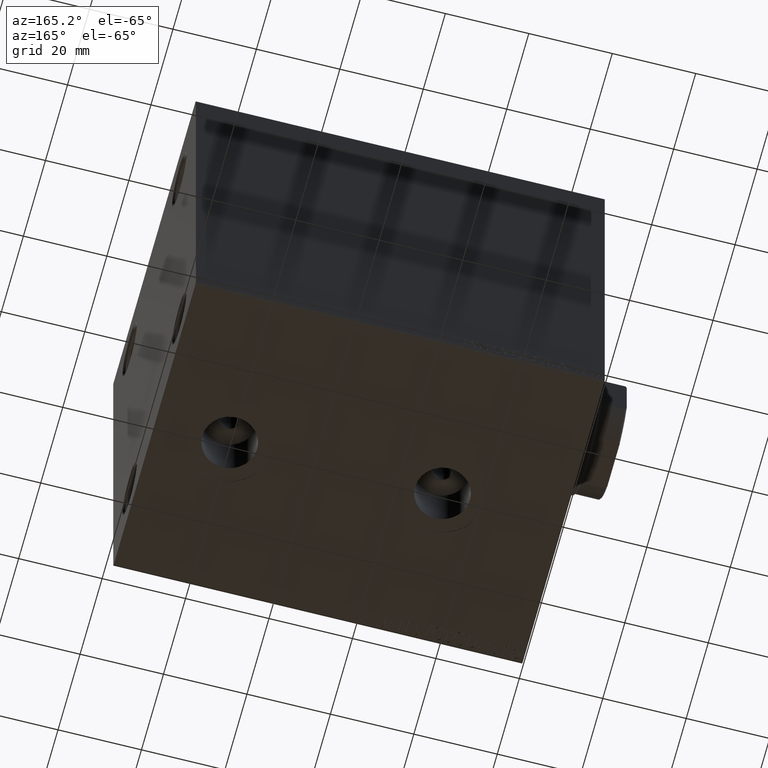
[diagram: clean part render]
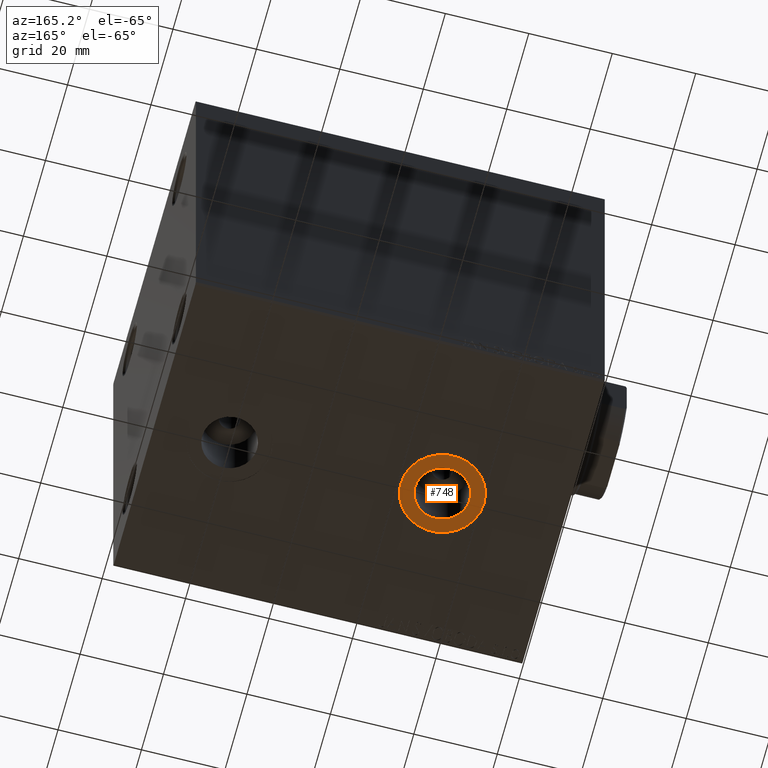
[diagram: same view with one face highlighted and labeled with its STEP entity id]
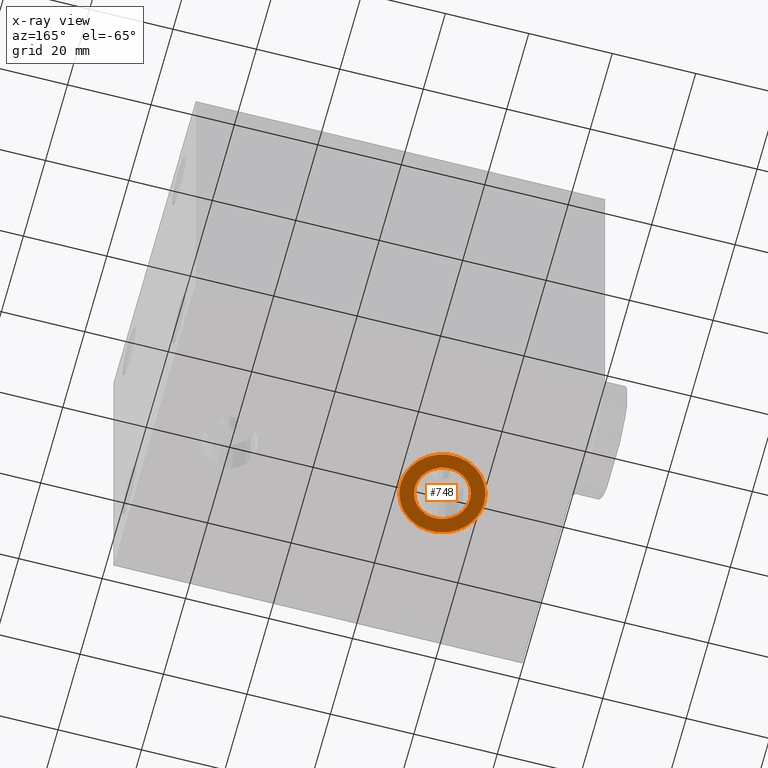
[diagram: x-ray of the same camera — body ghosted, the highlighted face saturated]
A machine part, auxiliary view. The second image highlights one B-rep face of the part: STEP entity #748.
The next image is the same camera in x-ray: the body ghosted, the highlighted face saturated — about 0% of this face is hidden behind the body in this view.
In plain terms, the highlighted planar face has unit normal (0, 0, -1).
Its self-contained STEP definition (entity closure, byte-faithful):
#748 = ADVANCED_FACE ( 'NONE', ( #9230, #23346 ), #5774, .T. ) ;
#2854 = CARTESIAN_POINT ( 'NONE',  ( 29.00000000000000000, -3.767935990684166618E-15, -49.89999999999999858 ) ) ;
#3047 = CARTESIAN_POINT ( 'NONE',  ( 29.00000000000000000, -3.767935990684166618E-15, -49.89999999999999858 ) ) ;
#4433 = VERTEX_POINT ( 'NONE', #34266 ) ;
#5774 = PLANE ( 'NONE',  #6211 ) ;
#6211 = AXIS2_PLACEMENT_3D ( 'NONE', #16397, #30491, #44593 ) ;
#6384 = CARTESIAN_POINT ( 'NONE',  ( 29.00000000000000000, -3.767935990684166618E-15, -49.89999999999999858 ) ) ;
#7780 = ORIENTED_EDGE ( 'NONE', *, *, #32569, .F. ) ;
#9170 = EDGE_LOOP ( 'NONE', ( #26842, #17469 ) ) ;
#9230 = FACE_BOUND ( 'NONE', #31723, .T. ) ;
#10963 = EDGE_CURVE ( 'NONE', #4433, #36805, #40328, .T. ) ;
#13894 = DIRECTION ( 'NONE',  ( -1.000000000000000000, 0.000000000000000000, 0.000000000000000000 ) ) ;
#14691 = CIRCLE ( 'NONE', #25753, 6.580000000000002736 ) ;
#16397 = CARTESIAN_POINT ( 'NONE',  ( 0.000000000000000000, 0.000000000000000000, -49.89999999999999858 ) ) ;
#17143 = DIRECTION ( 'NONE',  ( 0.000000000000000000, 0.000000000000000000, -1.000000000000000000 ) ) ;
#17469 = ORIENTED_EDGE ( 'NONE', *, *, #39788, .T. ) ;
#17481 = AXIS2_PLACEMENT_3D ( 'NONE', #38085, #45018, #37181 ) ;
#19503 = AXIS2_PLACEMENT_3D ( 'NONE', #3047, #17143, #13894 ) ;
#20405 = AXIS2_PLACEMENT_3D ( 'NONE', #2854, #34952, #44915 ) ;
#21171 = CIRCLE ( 'NONE', #17481, 9.999999999999998224 ) ;
#23346 = FACE_OUTER_BOUND ( 'NONE', #9170, .T. ) ;
#23849 = ORIENTED_EDGE ( 'NONE', *, *, #45404, .F. ) ;
#25753 = AXIS2_PLACEMENT_3D ( 'NONE', #6384, #41742, #34585 ) ;
#26842 = ORIENTED_EDGE ( 'NONE', *, *, #10963, .T. ) ;
#29228 = CARTESIAN_POINT ( 'NONE',  ( 35.57999999999999829, -2.962118396845207576E-15, -49.89999999999999858 ) ) ;
#30491 = DIRECTION ( 'NONE',  ( 0.000000000000000000, 0.000000000000000000, -1.000000000000000000 ) ) ;
#31723 = EDGE_LOOP ( 'NONE', ( #23849, #7780 ) ) ;
#32016 = CIRCLE ( 'NONE', #19503, 6.580000000000002736 ) ;
#32569 = EDGE_CURVE ( 'NONE', #45474, #37201, #32016, .T. ) ;
#34266 = CARTESIAN_POINT ( 'NONE',  ( 19.00000000000000355, -3.767935990684166618E-15, -49.89999999999999858 ) ) ;
#34585 = DIRECTION ( 'NONE',  ( -1.000000000000000000, 0.000000000000000000, 0.000000000000000000 ) ) ;
#34952 = DIRECTION ( 'NONE',  ( 0.000000000000000000, 0.000000000000000000, -1.000000000000000000 ) ) ;
#36202 = CARTESIAN_POINT ( 'NONE',  ( 22.41999999999999815, -3.767935990684166618E-15, -49.89999999999999858 ) ) ;
#36805 = VERTEX_POINT ( 'NONE', #42508 ) ;
#37181 = DIRECTION ( 'NONE',  ( -1.000000000000000000, 0.000000000000000000, 0.000000000000000000 ) ) ;
#37201 = VERTEX_POINT ( 'NONE', #36202 ) ;
#38085 = CARTESIAN_POINT ( 'NONE',  ( 29.00000000000000000, -3.767935990684166618E-15, -49.89999999999999858 ) ) ;
#39788 = EDGE_CURVE ( 'NONE', #36805, #4433, #21171, .T. ) ;
#40328 = CIRCLE ( 'NONE', #20405, 9.999999999999998224 ) ;
#41742 = DIRECTION ( 'NONE',  ( 0.000000000000000000, 0.000000000000000000, -1.000000000000000000 ) ) ;
#42508 = CARTESIAN_POINT ( 'NONE',  ( 39.00000000000000000, -2.543289191536813953E-15, -49.89999999999999858 ) ) ;
#44593 = DIRECTION ( 'NONE',  ( -1.000000000000000000, 0.000000000000000000, -0.000000000000000000 ) ) ;
#44915 = DIRECTION ( 'NONE',  ( -1.000000000000000000, 0.000000000000000000, 0.000000000000000000 ) ) ;
#45018 = DIRECTION ( 'NONE',  ( 0.000000000000000000, 0.000000000000000000, -1.000000000000000000 ) ) ;
#45404 = EDGE_CURVE ( 'NONE', #37201, #45474, #14691, .T. ) ;
#45474 = VERTEX_POINT ( 'NONE', #29228 ) ;